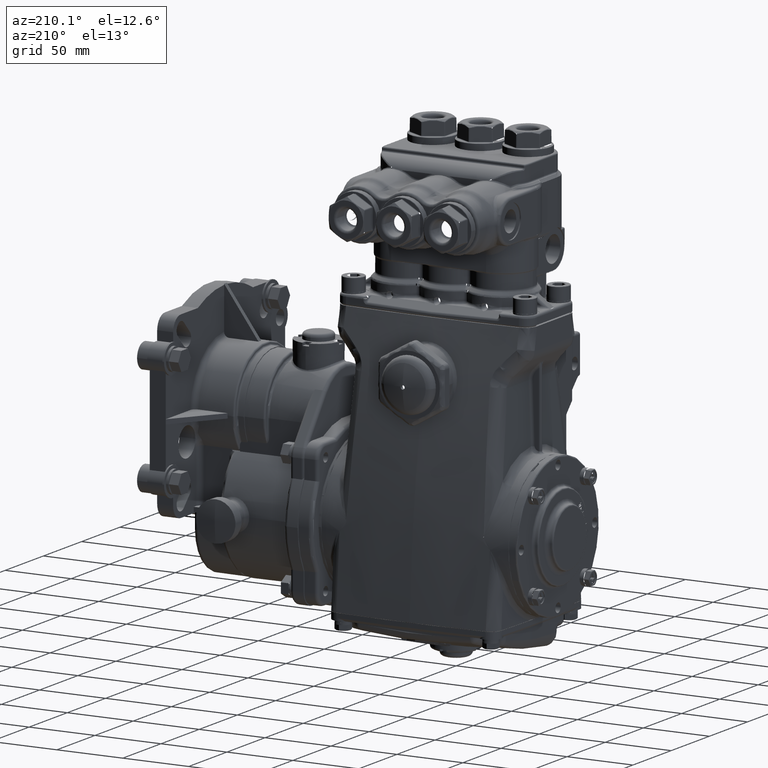
[diagram: clean part render]
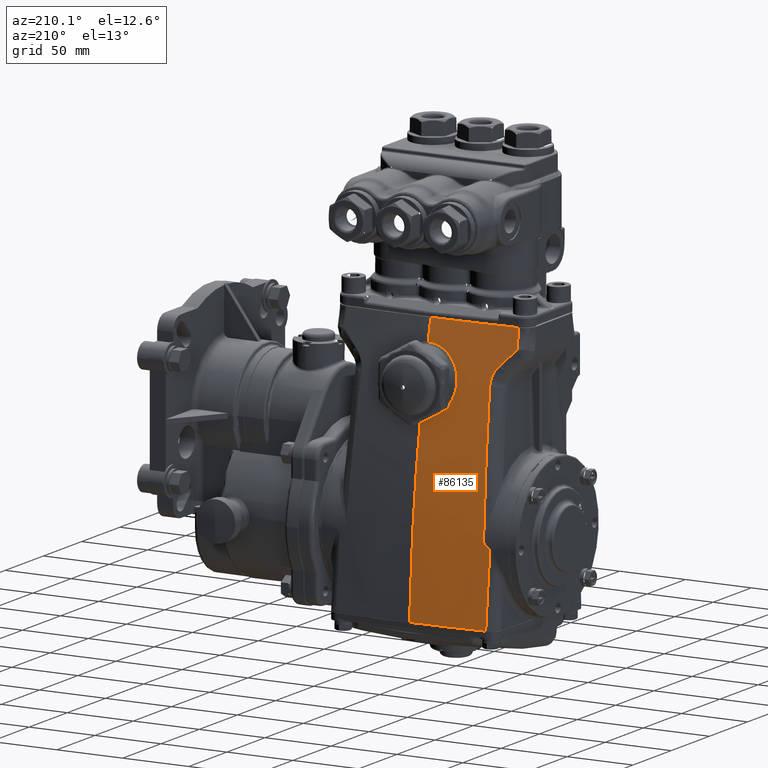
[diagram: same view with one face highlighted and labeled with its STEP entity id]
A machine part, auxiliary view. The second image highlights one B-rep face of the part: STEP entity #86135.
In plain terms, the highlighted face is a freeform B-spline surface patch.
Its self-contained STEP definition (entity closure, byte-faithful):
#938 = CARTESIAN_POINT ( 'NONE',  ( 2.476352911878936691, 2.114609130722263863, 0.4897784465330257131 ) ) ;
#940 = CARTESIAN_POINT ( 'NONE',  ( -2.279618857958573219, 1.416278901517128430, 4.829451229673167312 ) ) ;
#1252 = CARTESIAN_POINT ( 'NONE',  ( -2.239546380805880421, 2.213566551445498298, -0.7448622437288109355 ) ) ;
#1549 = CARTESIAN_POINT ( 'NONE',  ( 2.708159283295305642, 1.723791484228667459, 3.127925920230769652 ) ) ;
#2160 = CARTESIAN_POINT ( 'NONE',  ( 0.8095103919857050689, 1.292140362101252382, 5.708661417322824505 ) ) ;
#2774 = CARTESIAN_POINT ( 'NONE',  ( -0.1450234440065842345, 2.300768595909193692, 0.4897784465330312087 ) ) ;
#3368 = CARTESIAN_POINT ( 'NONE',  ( 2.179242577519465929, 1.242815352902282511, 5.708661417322839604 ) ) ;
#3775 = CARTESIAN_POINT ( 'NONE',  ( -0.5946663609481593893, 1.484859650876335424, 4.888530248302498826 ) ) ;
#3861 = CARTESIAN_POINT ( 'NONE',  ( -2.153604286739069895, 2.142677141121247963, 0.02739613417405062021 ) ) ;
#3900 = B_SPLINE_CURVE_WITH_KNOTS ( 'NONE', 3,
 ( #80675, #34273, #99877, #91176, #52818, #42366, #5233, #44171 ),
 .UNSPECIFIED., .F., .F.,
 ( 4, 2, 2, 4 ),
 ( 0.0003113998746300996462, 0.06810555726670124155, 0.1020026359627368012, 0.1358997146587723748 ),
 .UNSPECIFIED. ) ;
#4233 = CARTESIAN_POINT ( 'NONE',  ( -2.580420361868525525, 1.219814423293576366, 5.708661417322829834 ) ) ;
#4390 = CARTESIAN_POINT ( 'NONE',  ( -0.9644831214159413912, 1.618667759299428743, 4.199342229287561068 ) ) ;
#5003 = CARTESIAN_POINT ( 'NONE',  ( -1.274984242628392523E-15, 1.445461229294053629, 5.090103064882366191 ) ) ;
#5188 = CARTESIAN_POINT ( 'NONE',  ( -2.052668002272747927, 2.123788338986134505, 0.3020877454172159471 ) ) ;
#5233 = CARTESIAN_POINT ( 'NONE',  ( -4.466146051079346438E-16, 1.913088131938618153, 2.714857836103527600 ) ) ;
#5419 = B_SPLINE_CURVE_WITH_KNOTS ( 'NONE', 3,
 ( #5968, #6581, #79580, #72141 ),
 .UNSPECIFIED., .F., .F.,
 ( 4, 4 ),
 ( 0.1860543191475172720, 0.2021863343224881704 ),
 .UNSPECIFIED. ) ;
#5480 = CARTESIAN_POINT ( 'NONE',  ( -1.989399371181384657, 2.338284998638617829, -2.165354330708661568 ) ) ;
#5968 = CARTESIAN_POINT ( 'NONE',  ( -1.274984242628392523E-15, 1.445461229294053629, 5.090103064882366191 ) ) ;
#6164 = CARTESIAN_POINT ( 'NONE',  ( -2.580420361868525525, 1.219814423293576366, 5.708661417322829834 ) ) ;
#6198 = CARTESIAN_POINT ( 'NONE',  ( -0.4035240144287290942, 1.462619888851461880, 5.002588478119779580 ) ) ;
#6581 = CARTESIAN_POINT ( 'NONE',  ( 1.889681467910129429E-08, 1.398385728573260156, 5.296640703349395629 ) ) ;
#6767 = CARTESIAN_POINT ( 'NONE',  ( -2.048227176215684064, 1.481234032319028726, 4.583956750178723283 ) ) ;
#7311 = CARTESIAN_POINT ( 'NONE',  ( -2.913385826771653697, 2.265344068576853775, -2.165354330708661568 ) ) ;
#7938 = CARTESIAN_POINT ( 'NONE',  ( -1.062078202322146669, 2.384053432892066837, -2.165354330708661568 ) ) ;
#8051 = CARTESIAN_POINT ( 'NONE',  ( -0.2533926817482555771, 1.828505556673673205, 3.187054628844160131 ) ) ;
#9468 = EDGE_CURVE ( 'NONE', #115489, #51260, #69783, .T. ) ;
#9963 = VERTEX_POINT ( 'NONE', #113158 ) ;
#10228 = CARTESIAN_POINT ( 'NONE',  ( -0.7853088048963535739, 1.913828282296075267, 3.127925920230765211 ) ) ;
#10839 = CARTESIAN_POINT ( 'NONE',  ( 1.099363582922386673, 2.382977130700372648, -2.165354330708661568 ) ) ;
#11433 = CARTESIAN_POINT ( 'NONE',  ( 0.7760523888099779555, 2.282663781206291986, 0.4897784465330268233 ) ) ;
#12058 = CARTESIAN_POINT ( 'NONE',  ( 2.319896085376018283E-17, 1.931427949591510762, 3.127925920230771872 ) ) ;
#12394 = CARTESIAN_POINT ( 'NONE',  ( -2.582554775073421904, 1.257421124533808054, 5.523052829341247971 ) ) ;
#12629 = ORIENTED_EDGE ( 'NONE', *, *, #35794, .F. ) ;
#12664 = CARTESIAN_POINT ( 'NONE',  ( -0.8019535934125048282, 1.292120820694525829, 5.708661417322820952 ) ) ;
#13139 = CARTESIAN_POINT ( 'NONE',  ( -2.244154975526539531, 2.140548279587432656, -0.04263853052005076028 ) ) ;
#13675 = CARTESIAN_POINT ( 'NONE',  ( -0.7902471345203807562, 1.524914881969420044, 4.681808476390664886 ) ) ;
#14293 = CARTESIAN_POINT ( 'NONE',  ( -0.007991942765918347985, 1.445461232153650188, 5.090103052336265144 ) ) ;
#14362 = CARTESIAN_POINT ( 'NONE',  ( -2.077214970515644410, 2.141491778610241425, 0.1126631891245922779 ) ) ;
#14475 = CARTESIAN_POINT ( 'NONE',  ( -2.044355463987427957, 2.128279285250508579, 0.2680828113186349282 ) ) ;
#14781 = ORIENTED_EDGE ( 'NONE', *, *, #87878, .F. ) ;
#14883 = CARTESIAN_POINT ( 'NONE',  ( -0.9458950846975647808, 1.674355009619317380, 3.918891003596448375 ) ) ;
#15365 = CARTESIAN_POINT ( 'NONE',  ( -2.234415192802543526, 2.147607685230850105, 0.4897784465330339287 ) ) ;
#15990 = CARTESIAN_POINT ( 'NONE',  ( -2.324091733874594556, 1.235065584125860205, 5.708661417322837828 ) ) ;
#16100 = CARTESIAN_POINT ( 'NONE',  ( -0.8708494686695563702, 1.719662461424737776, 3.696078290583389769 ) ) ;
#16374 = ORIENTED_EDGE ( 'NONE', *, *, #91179, .F. ) ;
#16658 = CARTESIAN_POINT ( 'NONE',  ( -2.131860052545362816, 1.455898494205196236, 4.682448122466263740 ) ) ;
#17154 = CARTESIAN_POINT ( 'NONE',  ( -0.1449627675236095370, 1.299212598425194765, 5.708661417322837828 ) ) ;
#17195 = CARTESIAN_POINT ( 'NONE',  ( -2.841641326625984565, 1.202961639721772835, 5.708661417322836940 ) ) ;
#17472 = ORIENTED_EDGE ( 'NONE', *, *, #76048, .T. ) ;
#18968 = CARTESIAN_POINT ( 'NONE',  ( -2.975520256783599425E-07, 1.299212598425199872, 5.708661417322837828 ) ) ;
#19473 = CARTESIAN_POINT ( 'NONE',  ( 2.441314665332591005, 2.306279735125305486, -2.165354330708661568 ) ) ;
#19656 = EDGE_CURVE ( 'NONE', #9963, #98205, #5419, .T. ) ;
#20086 = CARTESIAN_POINT ( 'NONE',  ( -0.1449627675236095370, 1.299212598425194765, 5.708661417322837828 ) ) ;
#20288 = B_SPLINE_CURVE_WITH_KNOTS ( 'NONE', 3,
 ( #4233, #119243, #34487, #100710, #82697, #120463, #121072, #83936, #36330, #63554, #103154, #17154, #103760, #18968, #74047, #56694 ),
 .UNSPECIFIED., .F., .F.,
 ( 4, 1, 1, 1, 1, 1, 1, 1, 1, 1, 3, 4 ),
 ( 0.06520171273649551236, 0.06753282007624346328, 0.1174024920637856823, 0.1540237005538281356, 0.1694129428060909270, 0.2162494616614028531, 0.2572137211546264846, 0.3069485252441864209, 0.3694051774372769659, 0.4254245802233757034, 0.4999999999999931721, 0.5000000764014950194 ),
 .UNSPECIFIED. ) ;
#20693 = CARTESIAN_POINT ( 'NONE',  ( 7.936972221735040067E-07, 2.401574803149599369, -2.165354330708661568 ) ) ;
#21314 = CARTESIAN_POINT ( 'NONE',  ( 1.438329920831150188, 2.368889522099582479, -2.165354330708661568 ) ) ;
#21931 = CARTESIAN_POINT ( 'NONE',  ( 1.742463560137298861, 1.843263351871661682, 3.127925920230766099 ) ) ;
#22436 = CARTESIAN_POINT ( 'NONE',  ( -2.581547405182520460, 1.334037875565112996, 5.131388924344277847 ) ) ;
#22931 = CARTESIAN_POINT ( 'NONE',  ( -0.8408534539225610560, 1.540288871572165208, 4.602309156754100350 ) ) ;
#23014 = CARTESIAN_POINT ( 'NONE',  ( -2.086663981160561399, 2.141946370163338997, 0.09931180522621477214 ) ) ;
#23550 = CARTESIAN_POINT ( 'NONE',  ( -0.01614265106011288434, 1.445481042056539822, 5.090002092305161874 ) ) ;
#24149 = CARTESIAN_POINT ( 'NONE',  ( -0.9348349137624539784, 1.683629070884896217, 3.872875714643418732 ) ) ;
#24257 = CARTESIAN_POINT ( 'NONE',  ( -2.574974328991057604, 1.336104400314134022, 5.123366273300666407 ) ) ;
#25242 = CARTESIAN_POINT ( 'NONE',  ( -2.279253307875169998, 1.782954428840550332, 3.127925920230779422 ) ) ;
#25297 = CARTESIAN_POINT ( 'NONE',  ( -3.553331779381568324E-16, 2.401107312964255058, -2.153091527327260835 ) ) ;
#25369 = CARTESIAN_POINT ( 'NONE',  ( -0.9670770789927327638, 1.627969835512180108, 4.152052922981180672 ) ) ;
#25864 = CARTESIAN_POINT ( 'NONE',  ( -1.648668314213691533, 2.215500870424783830, 0.4897784465330284331 ) ) ;
#26975 = CARTESIAN_POINT ( 'NONE',  ( -2.053194142686559864, 2.123507996596452063, 0.3041950259637326570 ) ) ;
#27662 = VERTEX_POINT ( 'NONE', #56979 ) ;
#28764 = CARTESIAN_POINT ( 'NONE',  ( -2.913385809642305091, 1.691985680221154587, 3.127925920230778090 ) ) ;
#28790 = CARTESIAN_POINT ( 'NONE',  ( -2.040573113143061779, 2.130372523749103575, 0.2520858116330775278 ) ) ;
#28867 = ORIENTED_EDGE ( 'NONE', *, *, #121881, .F. ) ;
#29066 = CARTESIAN_POINT ( 'NONE',  ( -2.010220420681155140, 1.978156669164420789, 1.583179683012722050 ) ) ;
#29370 = CARTESIAN_POINT ( 'NONE',  ( 0.4944103712627416769, 1.296520347643933091, 5.708661417322852039 ) ) ;
#29821 = B_SPLINE_CURVE_WITH_KNOTS ( 'NONE', 3,
 ( #50343, #117767, #107930, #5188, #33613, #32997, #71365, #106713, #99226, #14475 ),
 .UNSPECIFIED., .F., .F.,
 ( 4, 3, 3, 4 ),
 ( -5.562569102119109104E-05, 0.000000000000000000, 0.0003135512665637998626, 0.0008964518825718759739 ),
 .UNSPECIFIED. ) ;
#29992 = CARTESIAN_POINT ( 'NONE',  ( 1.523571933390364785, 1.864023738764600591, 3.127925920230789192 ) ) ;
#30594 = CARTESIAN_POINT ( 'NONE',  ( -0.4056649939589583309, 1.297898323476693649, 5.708661417322814735 ) ) ;
#31199 = CARTESIAN_POINT ( 'NONE',  ( 1.648708095812247088, 2.358238290425401562, -2.165354330708661568 ) ) ;
#31422 = ORIENTED_EDGE ( 'NONE', *, *, #106276, .F. ) ;
#31687 = CARTESIAN_POINT ( 'NONE',  ( -2.217111855764112516, 2.141468998871418616, -0.02405646177959929258 ) ) ;
#31814 = CARTESIAN_POINT ( 'NONE',  ( 2.862114397419967649, 1.201536995417321174, 5.708661417322835163 ) ) ;
#32208 = CARTESIAN_POINT ( 'NONE',  ( -0.9599596636209277722, 1.609408501972310779, 4.246538372213342960 ) ) ;
#32727 = VERTEX_POINT ( 'NONE', #6164 ) ;
#32815 = CARTESIAN_POINT ( 'NONE',  ( -0.04032141249026679336, 1.445619475605324000, 5.089296836793727685 ) ) ;
#32889 = CARTESIAN_POINT ( 'NONE',  ( -2.043608718765491883, 2.136991848240977987, 0.1870679647836690218 ) ) ;
#32997 = CARTESIAN_POINT ( 'NONE',  ( -2.050696319507216092, 2.124840656513260484, 0.2941673272930124816 ) ) ;
#33613 = CARTESIAN_POINT ( 'NONE',  ( -2.051680137896821687, 2.124314930510387445, 0.2981281011033452000 ) ) ;
#33922 = CARTESIAN_POINT ( 'NONE',  ( -2.450684691601683340, 2.118214908375344319, 0.4897784465330273784 ) ) ;
#34039 = CARTESIAN_POINT ( 'NONE',  ( -0.1605620357445409763, 1.447988655397608015, 5.077233423560210568 ) ) ;
#34173 = EDGE_CURVE ( 'NONE', #109842, #83220, #29821, .T. ) ;
#34273 = CARTESIAN_POINT ( 'NONE',  ( 3.593408354664775481E-16, 2.367043445073854002, -1.263200589613154179 ) ) ;
#34487 = CARTESIAN_POINT ( 'NONE',  ( -2.484440817764909770, 1.225721470078472430, 5.708661417322824505 ) ) ;
#34508 = ORIENTED_EDGE ( 'NONE', *, *, #89435, .F. ) ;
#34646 = CARTESIAN_POINT ( 'NONE',  ( -0.3449787976630956376, 1.821950353961405922, 3.216540131001417890 ) ) ;
#35137 = CARTESIAN_POINT ( 'NONE',  ( -2.037265628463433398, 2.172062645620683519, 0.4897784465330372039 ) ) ;
#35254 = CARTESIAN_POINT ( 'NONE',  ( -0.4886140263089463476, 1.807145071133906100, 3.283690386975755882 ) ) ;
#35789 = VERTEX_POINT ( 'NONE', #58126 ) ;
#35794 = EDGE_CURVE ( 'NONE', #46389, #35789, #89853, .T. ) ;
#35868 = CARTESIAN_POINT ( 'NONE',  ( 4.913136071072523174E-16, 1.836057301759951743, 3.153322082173252383 ) ) ;
#36330 = CARTESIAN_POINT ( 'NONE',  ( -1.150346110494637530, 1.283976514928851342, 5.708661417322833387 ) ) ;
#36372 = CARTESIAN_POINT ( 'NONE',  ( -1.120923444174019235, 1.894876309026148453, 3.127925920230774093 ) ) ;
#36480 = CARTESIAN_POINT ( 'NONE',  ( -0.6422591814072778904, 1.782550782372619880, 3.397208525460234441 ) ) ;
#36733 = EDGE_CURVE ( 'NONE', #27662, #112135, #3900, .T. ) ;
#37146 = CARTESIAN_POINT ( 'NONE',  ( -2.227242516835840735, 2.321209563805544995, -2.152759186897168053 ) ) ;
#37319 = EDGE_CURVE ( 'NONE', #83220, #46389, #67194, .T. ) ;
#38654 = CARTESIAN_POINT ( 'NONE',  ( 0.2402441229366546194, 2.299342540392106837, 0.4897784465330339287 ) ) ;
#39273 = CARTESIAN_POINT ( 'NONE',  ( 2.729947521028391666, 1.210496205736397046, 5.708661417322837828 ) ) ;
#39883 = CARTESIAN_POINT ( 'NONE',  ( 2.035968259211032638, 2.335433637454252143, -2.165354330708661568 ) ) ;
#40491 = CARTESIAN_POINT ( 'NONE',  ( -0.1449928827331220249, 1.931427949591510762, 3.127925920230771872 ) ) ;
#40967 = CARTESIAN_POINT ( 'NONE',  ( -2.038984479122261106, 2.132266257378623298, 0.2358320036178836454 ) ) ;
#41105 = CARTESIAN_POINT ( 'NONE',  ( 0.2418360551790639801, 1.930064199602339103, 3.127925920230777201 ) ) ;
#41517 = CARTESIAN_POINT ( 'NONE',  ( -0.4888797921504500765, 1.471286706367559427, 4.958214325787497323 ) ) ;
#42117 = CARTESIAN_POINT ( 'NONE',  ( -0.8248358664637558402, 1.535056502061034278, 4.629367722570788324 ) ) ;
#42366 = CARTESIAN_POINT ( 'NONE',  ( -7.629761195857950561E-17, 1.982659120498347916, 2.275230264263858437 ) ) ;
#42735 = CARTESIAN_POINT ( 'NONE',  ( -0.08054166425364028825, 1.446093476583459880, 5.086882738810285076 ) ) ;
#43221 = CARTESIAN_POINT ( 'NONE',  ( -2.832087334218518215, 1.704813401921131399, 3.127925920230778090 ) ) ;
#43333 = CARTESIAN_POINT ( 'NONE',  ( -0.7319415609452395444, 1.510511002020254567, 4.756252534259797216 ) ) ;
#44171 = CARTESIAN_POINT ( 'NONE',  ( 4.913136071072523174E-16, 1.836057301759951743, 3.153322082173252383 ) ) ;
#44424 = CARTESIAN_POINT ( 'NONE',  ( -2.822533585408712575, 2.063108027997046179, 0.4897784465330322634 ) ) ;
#44483 = CARTESIAN_POINT ( 'NONE',  ( -1.954921401464340569, 1.523061787492009378, 4.402702356222214064 ) ) ;
#44532 = CARTESIAN_POINT ( 'NONE',  ( -0.5678631274823000563, 1.795369591084005068, 3.337844157325744021 ) ) ;
#45032 = CARTESIAN_POINT ( 'NONE',  ( -1.345329668388619115, 2.372960332906649317, -2.165354330708661568 ) ) ;
#45103 = CARTESIAN_POINT ( 'NONE',  ( -1.946748905238077532, 1.528379903095722359, 4.378080018571826493 ) ) ;
#45522 = CARTESIAN_POINT ( 'NONE',  ( 4.913136071072523174E-16, 1.836057301759951743, 3.153322082173252383 ) ) ;
#45659 = CARTESIAN_POINT ( 'NONE',  ( -1.091501189288772045, 2.263308735351807321, 0.4897784465330322634 ) ) ;
#45772 = CARTESIAN_POINT ( 'NONE',  ( -0.2689366647110955633, 1.827531859230573152, 3.191424109076884452 ) ) ;
#46389 = VERTEX_POINT ( 'NONE', #111151 ) ;
#46580 = ORIENTED_EDGE ( 'NONE', *, *, #9468, .F. ) ;
#47922 = CARTESIAN_POINT ( 'NONE',  ( 1.866877324122242721, 2.345940473350991429, -2.165354330708661568 ) ) ;
#47947 = CARTESIAN_POINT ( 'NONE',  ( -2.141518609228189263, 2.142761626880099524, 0.03843709217641186338 ) ) ;
#48533 = CARTESIAN_POINT ( 'NONE',  ( 2.546430131488103932, 1.222062046991425621, 5.708661417322830722 ) ) ;
#48560 = CARTESIAN_POINT ( 'NONE',  ( -2.190893994370608944, 2.142160377084880274, -0.004468358595172875793 ) ) ;
#48740 = CARTESIAN_POINT ( 'NONE',  ( -1.927611122228681362, 1.544016712790777790, 4.303500443620481342 ) ) ;
#49142 = CARTESIAN_POINT ( 'NONE',  ( 1.161614335099249162, 1.892574789840504090, 3.127925920230731460 ) ) ;
#49756 = CARTESIAN_POINT ( 'NONE',  ( 0.1020157036538342776, 2.401574803149599813, -2.165354330708661568 ) ) ;
#50061 = CARTESIAN_POINT ( 'NONE',  ( -2.032358843832673401, 2.056376370780970575, 0.9443930657390869898 ) ) ;
#50343 = CARTESIAN_POINT ( 'NONE',  ( -2.053194142686559864, 2.123507996596452063, 0.3041950259637326570 ) ) ;
#50362 = CARTESIAN_POINT ( 'NONE',  ( 0.7927816049644650365, 1.913850617605289184, 3.127925920230762991 ) ) ;
#50965 = CARTESIAN_POINT ( 'NONE',  ( 2.913385826771654141, 2.265344068576858216, -2.165354330708661568 ) ) ;
#51260 = VERTEX_POINT ( 'NONE', #70204 ) ;
#51369 = CARTESIAN_POINT ( 'NONE',  ( -0.5160278655444363594, 1.474502422586200012, 4.941722194200434792 ) ) ;
#51982 = CARTESIAN_POINT ( 'NONE',  ( -0.9554301720631649397, 1.603327808052290360, 4.277628539086538950 ) ) ;
#52177 = CARTESIAN_POINT ( 'NONE',  ( 2.848460234453425777, 2.059014184365152378, 0.4897784465330273784 ) ) ;
#52467 = CARTESIAN_POINT ( 'NONE',  ( -1.424768798695146943, 1.872199753906897080, 3.127925920230782530 ) ) ;
#52581 = CARTESIAN_POINT ( 'NONE',  ( -0.9195789750301698318, 1.573690374301592643, 4.429810660793449095 ) ) ;
#52818 = CARTESIAN_POINT ( 'NONE',  ( -8.016133500422119341E-17, 2.106884914907209971, 1.393649014934724262 ) ) ;
#53679 = CARTESIAN_POINT ( 'NONE',  ( -1.943646624093668951, 1.254362676313996783, 5.708661417322836940 ) ) ;
#53740 = CARTESIAN_POINT ( 'NONE',  ( -2.063488888649752440, 1.476050141854796216, 4.604872648964009052 ) ) ;
#54906 = CARTESIAN_POINT ( 'NONE',  ( -2.189576524486965603, 2.325080261920541513, -2.165354330708661568 ) ) ;
#55570 = CARTESIAN_POINT ( 'NONE',  ( -2.044355463987427957, 2.128279285250508579, 0.2680828113186349282 ) ) ;
#56201 = CARTESIAN_POINT ( 'NONE',  ( -1.982876757387886268, 1.507254981816013251, 4.474301887717919257 ) ) ;
#56302 = CARTESIAN_POINT ( 'NONE',  ( -2.244154975526539531, 2.140548279587432656, -0.04263853052005076028 ) ) ;
#56694 = CARTESIAN_POINT ( 'NONE',  ( 3.450959980213676461E-17, 1.299212598425197429, 5.708661417322835163 ) ) ;
#56979 = CARTESIAN_POINT ( 'NONE',  ( -3.553331779381568324E-16, 2.401107312964255058, -2.153091527327260835 ) ) ;
#57206 = CARTESIAN_POINT ( 'NONE',  ( -0.4014957656440674150, 1.927885586440226895, 3.127925920230758550 ) ) ;
#57415 = CARTESIAN_POINT ( 'NONE',  ( -1.911712936028526322, 1.569139206086894500, 4.176878153945165373 ) ) ;
#57803 = CARTESIAN_POINT ( 'NONE',  ( 0.1019499836553653532, 1.299212598425203424, 5.708661417322837828 ) ) ;
#57824 = CARTESIAN_POINT ( 'NONE',  ( -2.044355463987427957, 2.128279285250508579, 0.2680828113186349282 ) ) ;
#58126 = CARTESIAN_POINT ( 'NONE',  ( -2.227242516835840735, 2.321209563805544995, -2.152759186897168053 ) ) ;
#58418 = CARTESIAN_POINT ( 'NONE',  ( -0.3931574066697886560, 2.399831511276485863, -2.165354330708661568 ) ) ;
#58745 = CARTESIAN_POINT ( 'NONE',  ( -2.584535606851970257, 1.294080410689277816, 5.337251396087705935 ) ) ;
#59015 = CARTESIAN_POINT ( 'NONE',  ( 0.7593239362273205284, 2.393134938270125467, -2.165354330708661568 ) ) ;
#59358 = CARTESIAN_POINT ( 'NONE',  ( -2.580420361868525525, 1.219814423293576366, 5.708661417322829834 ) ) ;
#59633 = CARTESIAN_POINT ( 'NONE',  ( 2.131484495458442208, 1.801026039677056101, 3.127925920230771872 ) ) ;
#60639 = CARTESIAN_POINT ( 'NONE',  ( -0.9672713820068502555, 1.646538536074291237, 4.058006522140315653 ) ) ;
#61197 = CARTESIAN_POINT ( 'NONE',  ( -0.7432005799770041721, 2.394457355549478805, -2.153057796680047709 ) ) ;
#61258 = CARTESIAN_POINT ( 'NONE',  ( -0.4326564059834072662, 1.465345589794402548, 4.988646893029097029 ) ) ;
#61338 = CARTESIAN_POINT ( 'NONE',  ( -2.060662642086692475, 2.140149228468939402, 0.1411380803277902662 ) ) ;
#61882 = B_SPLINE_CURVE_WITH_KNOTS ( 'NONE', 3,
 ( #98981, #80980, #63020, #61197, #109472, #25297 ),
 .UNSPECIFIED., .F., .F.,
 ( 4, 2, 4 ),
 ( 2.221529986854170653E-16, 0.02830497638067613897, 0.05660995276135205589 ),
 .UNSPECIFIED. ) ;
#62358 = CARTESIAN_POINT ( 'NONE',  ( -2.487087237515690497, 1.755350102494653619, 3.127925920230767431 ) ) ;
#63020 = CARTESIAN_POINT ( 'NONE',  ( -1.485659127593189410, 2.367827536078678907, -2.152937399985699773 ) ) ;
#63085 = CARTESIAN_POINT ( 'NONE',  ( -0.8837879089344025108, 1.556684492105498974, 4.517574585329222181 ) ) ;
#63554 = CARTESIAN_POINT ( 'NONE',  ( -0.8019535934125048282, 1.292120820694525829, 5.708661417322820952 ) ) ;
#63712 = CARTESIAN_POINT ( 'NONE',  ( -0.2066455304282949212, 1.831067194595412229, 3.175578635901488589 ) ) ;
#65897 = VERTEX_POINT ( 'NONE', #94367 ) ;
#66493 = CARTESIAN_POINT ( 'NONE',  ( 2.240980235268052567, 2.321187910974375601, -2.165354330708661568 ) ) ;
#66496 = CARTESIAN_POINT ( 'NONE',  ( -2.427290454833202382, 1.376123305585299272, 4.976396351799645679 ) ) ;
#66517 = CARTESIAN_POINT ( 'NONE',  ( -2.053717711146651137, 2.139269078108408273, 0.1560372837815818814 ) ) ;
#67107 = CARTESIAN_POINT ( 'NONE',  ( 2.369125755900576280, 1.232386614232151567, 5.708661417322828946 ) ) ;
#67194 = B_SPLINE_CURVE_WITH_KNOTS ( 'NONE', 3,
 ( #57824, #28790, #40967, #78673, #32889, #66517, #61338, #14362, #23014, #97894, #89204, #47947, #3861, #48560, #31687, #13139 ),
 .UNSPECIFIED., .F., .F.,
 ( 4, 2, 2, 2, 2, 2, 2, 4 ),
 ( 0.000000000000000000, 0.001262479239838070356, 0.002524958479676140712, 0.003787437719514211067, 0.005049916959352281423, 0.006312396199190351345, 0.007574875439028422135, 0.01009983391870456285 ),
 .UNSPECIFIED. ) ;
#67419 = CARTESIAN_POINT ( 'NONE',  ( -1.913792689305000794, 1.578652126433170100, 4.124995731966824231 ) ) ;
#67445 = CARTESIAN_POINT ( 'NONE',  ( -2.586362804630043755, 1.329823753665074770, 5.151270064738946886 ) ) ;
#67721 = CARTESIAN_POINT ( 'NONE',  ( 2.283695148368128258, 2.140796000541696831, 0.4897784465330257131 ) ) ;
#68324 = CARTESIAN_POINT ( 'NONE',  ( -0.1450532115828242763, 2.401574803149599369, -2.165354330708661568 ) ) ;
#68633 = CARTESIAN_POINT ( 'NONE',  ( -1.963626619177751165, 1.797341108968452561, 2.856902942451461147 ) ) ;
#68859 = CARTESIAN_POINT ( 'NONE',  ( -2.585440017282558234, 1.331886858991679468, 5.140951107667772746 ) ) ;
#68949 = CARTESIAN_POINT ( 'NONE',  ( 1.163670133464663677E-17, 2.300768595909193692, 0.4897784465330312087 ) ) ;
#69783 = B_SPLINE_CURVE_WITH_KNOTS ( 'NONE', 3,
 ( #107249, #118303, #68859, #22436, #109058, #24257 ),
 .UNSPECIFIED., .F., .F.,
 ( 4, 2, 4 ),
 ( 2.860979249076398407E-17, 0.0003987412940839050513, 0.0007974825881677814797 ),
 .UNSPECIFIED. ) ;
#69957 = CARTESIAN_POINT ( 'NONE',  ( -0.9169727454114507958, 1.695898520020460598, 3.812303417004026418 ) ) ;
#70204 = CARTESIAN_POINT ( 'NONE',  ( -2.574974328991057604, 1.336104400314134022, 5.123366273300666407 ) ) ;
#70564 = CARTESIAN_POINT ( 'NONE',  ( -0.03226603085782383390, 1.445560164890504762, 5.089598979694466507 ) ) ;
#70964 = VERTEX_POINT ( 'NONE', #89998 ) ;
#71365 = CARTESIAN_POINT ( 'NONE',  ( -2.049718606573461166, 2.125365367588376575, 0.2902049147125475015 ) ) ;
#71378 = CARTESIAN_POINT ( 'NONE',  ( 2.841633460699813707, 2.272069094341538253, -2.165354330708661568 ) ) ;
#71674 = CARTESIAN_POINT ( 'NONE',  ( -2.684844189044222063, 2.084204787240034662, 0.4897784465330306536 ) ) ;
#71698 = CARTESIAN_POINT ( 'NONE',  ( -2.586362804630043755, 1.329823753665074770, 5.151270064738946886 ) ) ;
#72141 = CARTESIAN_POINT ( 'NONE',  ( 3.450959980213676461E-17, 1.299212598425197429, 5.708661417322835163 ) ) ;
#72259 = CARTESIAN_POINT ( 'NONE',  ( -2.706392384829025666, 1.723957603235178659, 3.127925920230774093 ) ) ;
#72375 = CARTESIAN_POINT ( 'NONE',  ( -0.06459929520378426826, 1.836057302116698375, 3.153322082174859542 ) ) ;
#72377 = CARTESIAN_POINT ( 'NONE',  ( -0.6433779996093791365, 1.492703628457151765, 4.848150405952392106 ) ) ;
#72540 = EDGE_LOOP ( 'NONE', ( #12629, #96410, #81312, #28867, #118396, #34508, #46580, #14781, #17472, #88884, #31422, #97843, #16374 ) ) ;
#72869 = CARTESIAN_POINT ( 'NONE',  ( -2.663295530942336509, 2.288034568519320633, -2.165354330708661568 ) ) ;
#72986 = CARTESIAN_POINT ( 'NONE',  ( -0.6057620011881456046, 1.789096022879973935, 3.366838808613131118 ) ) ;
#73478 = CARTESIAN_POINT ( 'NONE',  ( -1.846782245487677443, 2.194251839819490346, 0.4897784465330333736 ) ) ;
#73956 = CARTESIAN_POINT ( 'NONE',  ( 3.450959980213676461E-17, 1.299212598425197429, 5.708661417322835163 ) ) ;
#74047 = CARTESIAN_POINT ( 'NONE',  ( -1.490400975860531206E-07, 1.299212598425199205, 5.708661417322837828 ) ) ;
#74196 = CARTESIAN_POINT ( 'NONE',  ( -0.7307716510373689633, 1.763420215501402932, 3.486847099895348912 ) ) ;
#76048 = EDGE_CURVE ( 'NONE', #32727, #98205, #20288, .T. ) ;
#76366 = CARTESIAN_POINT ( 'NONE',  ( 2.511391663655022644, 1.752002329188374841, 3.127925920230763879 ) ) ;
#76977 = CARTESIAN_POINT ( 'NONE',  ( 0.4873200862093256536, 1.924545779200155238, 3.127925920230781642 ) ) ;
#77184 = CARTESIAN_POINT ( 'NONE',  ( -1.914997405245973727, 1.559272713065359195, 4.227973954623275965 ) ) ;
#77581 = CARTESIAN_POINT ( 'NONE',  ( 1.566192897389171446, 1.270407001257443991, 5.708661417322867138 ) ) ;
#78188 = CARTESIAN_POINT ( 'NONE',  ( 0.2386529819870307489, 2.400899943846330320, -2.165354330708661568 ) ) ;
#78673 = CARTESIAN_POINT ( 'NONE',  ( -2.040459019290783882, 2.135564256478422518, 0.2034737644382935695 ) ) ;
#78805 = CARTESIAN_POINT ( 'NONE',  ( 1.789341252083276768, 1.261249471572284842, 5.708661417322832499 ) ) ;
#78986 = EDGE_CURVE ( 'NONE', #70964, #65897, #84700, .T. ) ;
#79210 = CARTESIAN_POINT ( 'NONE',  ( -0.3151986056433663808, 1.455377961310619028, 5.039591650425436775 ) ) ;
#79580 = CARTESIAN_POINT ( 'NONE',  ( -1.384850827037492099E-08, 1.349635227852899577, 5.502833657239617260 ) ) ;
#79801 = B_SPLINE_SURFACE_WITH_KNOTS ( 'NONE', 3, 3, ( 
 ( #7311, #119883, #28764, #99521 ),
 ( #118685, #44424, #43221, #17195 ),
 ( #72869, #71674, #72259, #82131 ),
 ( #100754, #33922, #62358, #110027 ),
 ( #54906, #15365, #25242, #15990 ),
 ( #5480, #35137, #83358, #82741 ),
 ( #120508, #73478, #92660, #53679 ),
 ( #80930, #25864, #91428, #111851 ),
 ( #45032, #111250, #52467, #110637 ),
 ( #7938, #45659, #36372, #90218 ),
 ( #97413, #105492, #10228, #12664 ),
 ( #58418, #114740, #57206, #30594 ),
 ( #68324, #2774, #40491, #20086 ),
 ( #20693, #68949, #12058, #88105 ),
 ( #49756, #94961, #96187, #57803 ),
 ( #78188, #38654, #41105, #106100 ),
 ( #87486, #115938, #76977, #29370 ),
 ( #59015, #11433, #50362, #2160 ),
 ( #10839, #106726, #49142, #86881 ),
 ( #21314, #86250, #29992, #77581 ),
 ( #31199, #115342, #21931, #78805 ),
 ( #47922, #96795, #95579, #116573 ),
 ( #39883, #85656, #59633, #3368 ),
 ( #66493, #67721, #104265, #67107 ),
 ( #19473, #938, #76366, #48533 ),
 ( #114128, #104885, #1549, #39273 ),
 ( #71378, #52177, #81845, #31814 ),
 ( #50965, #99240, #98023, #81237 ) ),
 .UNSPECIFIED., .F., .F., .F.,
 ( 4, 1, 1, 1, 1, 1, 1, 1, 1, 1, 1, 3, 1, 1, 1, 1, 1, 1, 1, 1, 1, 1, 1, 4 ),
 ( 4, 4 ),
 ( 0.6820721574386665598, 0.6959246563835279620, 0.7035427212275893183, 0.7193976784518302248, 0.7310405802590583813, 0.7359332488469740863, 0.7508238822397268475, 0.7638475608825302521, 0.7796596398469348710, 0.7995163485322880348, 0.8173264764016470174, 0.8410360787193331689, 0.8577107850873244566, 0.8637457220820379256, 0.8805901526646464639, 0.9065920388027239873, 0.9224714650153007511, 0.9387315542144891722, 0.9421836685404010314, 0.9588536976265762402, 0.9664841599499356395, 0.9748837514135768600, 0.9901004416486960391, 1.000000000000000000 ),
 ( 0.000000000000000000, 1.000000000000000000 ),
 .UNSPECIFIED. ) ;
#79814 = CARTESIAN_POINT ( 'NONE',  ( -0.1286849885896270140, 1.447041223724454762, 5.082056845242140852 ) ) ;
#80675 = CARTESIAN_POINT ( 'NONE',  ( -3.553331779381568324E-16, 2.401107312964255058, -2.153091527327260835 ) ) ;
#80930 = CARTESIAN_POINT ( 'NONE',  ( -1.602354164347862486, 2.360792373919399001, -2.165354330708661568 ) ) ;
#80980 = CARTESIAN_POINT ( 'NONE',  ( -1.856596089375251557, 2.347836400576192695, -2.152851640792331267 ) ) ;
#81237 = CARTESIAN_POINT ( 'NONE',  ( 2.913385826771653697, 1.197969208711458622, 5.708661417322836940 ) ) ;
#81312 = ORIENTED_EDGE ( 'NONE', *, *, #34173, .F. ) ;
#81647 = CARTESIAN_POINT ( 'NONE',  ( -0.9611287857313430827, 1.658899699653147763, 3.995873098052594941 ) ) ;
#81845 = CARTESIAN_POINT ( 'NONE',  ( 2.855287436206074059, 1.701152819370444380, 3.127925920230767431 ) ) ;
#82131 = CARTESIAN_POINT ( 'NONE',  ( -2.727940840439588843, 1.210589729325569186, 5.708661417322829834 ) ) ;
#82697 = CARTESIAN_POINT ( 'NONE',  ( -2.132997294791504572, 1.245100427256950137, 5.708661417322847598 ) ) ;
#82741 = CARTESIAN_POINT ( 'NONE',  ( -2.132997294791504572, 1.245100427256950137, 5.708661417322847598 ) ) ;
#83220 = VERTEX_POINT ( 'NONE', #55570 ) ;
#83358 = CARTESIAN_POINT ( 'NONE',  ( -2.085131295870260804, 1.806265684984544873, 3.127925920230786083 ) ) ;
#83422 = CARTESIAN_POINT ( 'NONE',  ( -2.006197590821474641, 1.496792152695942901, 4.519617041527910217 ) ) ;
#83472 = CARTESIAN_POINT ( 'NONE',  ( -0.3149968055351911600, 1.824372806192152252, 3.205623488492978623 ) ) ;
#83936 = CARTESIAN_POINT ( 'NONE',  ( -1.464488406949919552, 1.274012937168632842, 5.708661417322844933 ) ) ;
#84503 = B_SPLINE_CURVE_WITH_KNOTS ( 'NONE', 3,
 ( #102444, #66496, #940, #93134 ),
 .UNSPECIFIED., .F., .F.,
 ( 4, 4 ),
 ( 0.000000000000000000, 0.01616665010958682341 ),
 .UNSPECIFIED. ) ;
#84700 = B_SPLINE_CURVE_WITH_KNOTS ( 'NONE', 3,
 ( #16658, #91492, #100816, #53740, #6767, #83422, #56201, #44483, #45103, #119956, #48740, #77184, #57415, #94568 ),
 .UNSPECIFIED., .F., .F.,
 ( 4, 2, 2, 2, 2, 2, 4 ),
 ( 0.000000000000000000, 0.002006917460411370476, 0.004013834920822740952, 0.008027669841645476700, 0.01003458730205684761, 0.01204150476246821679, 0.01605533968329095340 ),
 .UNSPECIFIED. ) ;
#85656 = CARTESIAN_POINT ( 'NONE',  ( 2.083726086542775580, 2.166614530041778952, 0.4897784465330300985 ) ) ;
#86135 = ADVANCED_FACE ( 'NONE', ( #90827 ), #79801, .F. ) ;
#86250 = CARTESIAN_POINT ( 'NONE',  ( 1.480950586178896522, 2.231805334558643494, 0.4897784465330393688 ) ) ;
#86881 = CARTESIAN_POINT ( 'NONE',  ( 1.192739666030848023, 1.282981708238517982, 5.708661417322778320 ) ) ;
#87486 = CARTESIAN_POINT ( 'NONE',  ( 0.4731394191495172374, 2.398237061164405937, -2.165354330708661568 ) ) ;
#87801 = CARTESIAN_POINT ( 'NONE',  ( -2.053194142686559864, 2.123507996596452063, 0.3041950259637326570 ) ) ;
#87878 = EDGE_CURVE ( 'NONE', #32727, #115489, #108464, .T. ) ;
#88105 = CARTESIAN_POINT ( 'NONE',  ( -4.460639496743511363E-07, 1.299212598425199872, 5.708661417322837828 ) ) ;
#88507 = CARTESIAN_POINT ( 'NONE',  ( -0.8416776436527459992, 1.731100539559012663, 3.640799853198356306 ) ) ;
#88884 = ORIENTED_EDGE ( 'NONE', *, *, #19656, .F. ) ;
#89132 = CARTESIAN_POINT ( 'NONE',  ( -0.2544585553639733821, 1.451715161675748211, 5.058253401313941744 ) ) ;
#89204 = CARTESIAN_POINT ( 'NONE',  ( -2.118289369877800699, 2.142698611774983775, 0.06166686124301572203 ) ) ;
#89435 = EDGE_CURVE ( 'NONE', #51260, #70964, #84503, .T. ) ;
#89736 = CARTESIAN_POINT ( 'NONE',  ( -0.9374267225573134077, 1.585341853739807183, 4.369806067430778818 ) ) ;
#89853 = B_SPLINE_CURVE_WITH_KNOTS ( 'NONE', 3,
 ( #56302, #1252, #121885, #37146 ),
 .UNSPECIFIED., .F., .F.,
 ( 4, 4 ),
 ( 0.001088878662660275332, 0.05488596565795428317 ),
 .UNSPECIFIED. ) ;
#89998 = CARTESIAN_POINT ( 'NONE',  ( -2.131860052545362816, 1.455898494205196236, 4.682448122466263740 ) ) ;
#90218 = CARTESIAN_POINT ( 'NONE',  ( -1.150346110494637530, 1.283976514928851342, 5.708661417322833387 ) ) ;
#90827 = FACE_OUTER_BOUND ( 'NONE', #72540, .T. ) ;
#91176 = CARTESIAN_POINT ( 'NONE',  ( -9.400979228033020406E-16, 2.161540637553380773, 0.9516246190699118035 ) ) ;
#91179 = EDGE_CURVE ( 'NONE', #35789, #27662, #61882, .T. ) ;
#91428 = CARTESIAN_POINT ( 'NONE',  ( -1.694981807724714296, 1.848142482010741716, 3.127925920230768320 ) ) ;
#91492 = CARTESIAN_POINT ( 'NONE',  ( -2.113476934372326532, 1.460827687103822159, 4.664159022983963787 ) ) ;
#91537 = CARTESIAN_POINT ( 'NONE',  ( -0.5548157912006945747, 1.797392117569904801, 3.328526122958149536 ) ) ;
#92660 = CARTESIAN_POINT ( 'NONE',  ( -1.895214259565363601, 1.827571154474304294, 3.127925920230778090 ) ) ;
#93134 = CARTESIAN_POINT ( 'NONE',  ( -2.131860052545362816, 1.455898494205196236, 4.682448122466263740 ) ) ;
#94367 = CARTESIAN_POINT ( 'NONE',  ( -1.913792689305000794, 1.578652126433170100, 4.124995731966824231 ) ) ;
#94568 = CARTESIAN_POINT ( 'NONE',  ( -1.913792689305000794, 1.578652126433170100, 4.124995731966824231 ) ) ;
#94961 = CARTESIAN_POINT ( 'NONE',  ( 0.1019934165441797602, 2.300768595909193692, 0.4897784465330312087 ) ) ;
#95579 = CARTESIAN_POINT ( 'NONE',  ( 1.964095400574084938, 1.820132787096657490, 3.127925920230765211 ) ) ;
#96187 = CARTESIAN_POINT ( 'NONE',  ( 0.1019719231317473968, 1.931427949591510762, 3.127925920230771872 ) ) ;
#96410 = ORIENTED_EDGE ( 'NONE', *, *, #37319, .F. ) ;
#96795 = CARTESIAN_POINT ( 'NONE',  ( 1.915486056463422626, 2.186527716124472054, 0.4897784465330268233 ) ) ;
#97413 = CARTESIAN_POINT ( 'NONE',  ( -0.7520193225572913143, 2.393118508680718737, -2.165354330708661568 ) ) ;
#97843 = ORIENTED_EDGE ( 'NONE', *, *, #36733, .F. ) ;
#97894 = CARTESIAN_POINT ( 'NONE',  ( -2.107178115646287431, 2.142550459315984757, 0.07382979369071132614 ) ) ;
#98023 = CARTESIAN_POINT ( 'NONE',  ( 2.913385843901003192, 1.691985680221068877, 3.127925920230767431 ) ) ;
#98205 = VERTEX_POINT ( 'NONE', #73956 ) ;
#98430 = CARTESIAN_POINT ( 'NONE',  ( -0.9674257110944357585, 1.631065580829812012, 4.136350087504880868 ) ) ;
#98981 = CARTESIAN_POINT ( 'NONE',  ( -2.227242516835840735, 2.321209563805544995, -2.152759186897168053 ) ) ;
#99037 = CARTESIAN_POINT ( 'NONE',  ( -0.7895195932548946249, 1.747619812788681060, 3.561772888436794737 ) ) ;
#99226 = CARTESIAN_POINT ( 'NONE',  ( -2.046101504699353146, 2.127312986832227359, 0.2754674812947193741 ) ) ;
#99240 = CARTESIAN_POINT ( 'NONE',  ( 2.913385628152182161, 2.048762232609131040, 0.4897784465330273784 ) ) ;
#99521 = CARTESIAN_POINT ( 'NONE',  ( -2.913385826771655474, 1.197969208711458622, 5.708661417322835163 ) ) ;
#99636 = CARTESIAN_POINT ( 'NONE',  ( -0.9424672581809908634, 1.677446185038369952, 3.903529103138576595 ) ) ;
#99877 = CARTESIAN_POINT ( 'NONE',  ( -9.459155955198532228E-16, 2.302870744067759379, -0.3757870823018082396 ) ) ;
#100710 = CARTESIAN_POINT ( 'NONE',  ( -2.324091733874594556, 1.235065584125860205, 5.708661417322837828 ) ) ;
#100754 = CARTESIAN_POINT ( 'NONE',  ( -2.414281635307358176, 2.308400903803341286, -2.165354330708661568 ) ) ;
#100816 = CARTESIAN_POINT ( 'NONE',  ( -2.096129776760800034, 1.465843969454386109, 4.644982890269668374 ) ) ;
#100865 = CARTESIAN_POINT ( 'NONE',  ( -0.1282450143015184951, 1.834608345002695096, 3.159747366912882161 ) ) ;
#100867 = CARTESIAN_POINT ( 'NONE',  ( -0.7107172724088218763, 1.505913706992816570, 4.779993862681470418 ) ) ;
#102444 = CARTESIAN_POINT ( 'NONE',  ( -2.574974328991057604, 1.336104400314134022, 5.123366273300666407 ) ) ;
#103154 = CARTESIAN_POINT ( 'NONE',  ( -0.4056649939589583309, 1.297898323476693649, 5.708661417322814735 ) ) ;
#103760 = CARTESIAN_POINT ( 'NONE',  ( -4.460639496743511363E-07, 1.299212598425199872, 5.708661417322837828 ) ) ;
#104265 = CARTESIAN_POINT ( 'NONE',  ( 2.326410604817633843, 1.776570720899578237, 3.127925920230762991 ) ) ;
#104885 = CARTESIAN_POINT ( 'NONE',  ( 2.686370785910835668, 2.084068835673689168, 0.4897784465330284331 ) ) ;
#105492 = CARTESIAN_POINT ( 'NONE',  ( -0.7686644455069947535, 2.282642455870151466, 0.4897784465330279335 ) ) ;
#106100 = CARTESIAN_POINT ( 'NONE',  ( 0.2434275427088355981, 1.298707510032789170, 5.708661417322846710 ) ) ;
#106276 = EDGE_CURVE ( 'NONE', #112135, #9963, #119788, .T. ) ;
#106713 = CARTESIAN_POINT ( 'NONE',  ( -2.047901024090823530, 2.126340813064907742, 0.2828387324246880996 ) ) ;
#106726 = CARTESIAN_POINT ( 'NONE',  ( 1.130488594888032106, 2.260970933480409784, 0.4897784465330104475 ) ) ;
#107249 = CARTESIAN_POINT ( 'NONE',  ( -2.586362804630043755, 1.329823753665074770, 5.151270064738946886 ) ) ;
#107737 = CARTESIAN_POINT ( 'NONE',  ( -0.8703003494871583978, 1.551087081194280737, 4.546494005402069050 ) ) ;
#107930 = CARTESIAN_POINT ( 'NONE',  ( -2.052843254757448221, 2.123694918800838050, 0.3027902077404302505 ) ) ;
#108342 = CARTESIAN_POINT ( 'NONE',  ( -0.9064667844229428173, 1.701914183292754679, 3.782771815187817577 ) ) ;
#108464 = B_SPLINE_CURVE_WITH_KNOTS ( 'NONE', 3,
 ( #59358, #12394, #58745, #67445 ),
 .UNSPECIFIED., .F., .F.,
 ( 4, 4 ),
 ( -5.999999999966940033E-08, 0.01443155766111012782 ),
 .UNSPECIFIED. ) ;
#108945 = CARTESIAN_POINT ( 'NONE',  ( -0.9656080779111774204, 1.621775079081216209, 4.183527801579442595 ) ) ;
#109058 = CARTESIAN_POINT ( 'NONE',  ( -2.578671170726355211, 1.335102641929536871, 5.127045243281220799 ) ) ;
#109472 = CARTESIAN_POINT ( 'NONE',  ( -0.3716019788068584129, 2.401107303656055958, -2.153091527322794185 ) ) ;
#109842 = VERTEX_POINT ( 'NONE', #26975 ) ;
#110027 = CARTESIAN_POINT ( 'NONE',  ( -2.523490070267365493, 1.223445930611731125, 5.708661417322820064 ) ) ;
#110137 = CARTESIAN_POINT ( 'NONE',  ( -0.4328265377979033102, 1.813782680613042597, 3.253492456797081989 ) ) ;
#110139 = CARTESIAN_POINT ( 'NONE',  ( -0.9306256475736158773, 1.686722155919021748, 3.857577703846203576 ) ) ;
#110637 = CARTESIAN_POINT ( 'NONE',  ( -1.464488406949919552, 1.274012937168632842, 5.708661417322844933 ) ) ;
#110751 = CARTESIAN_POINT ( 'NONE',  ( -0.6887007126048568795, 1.773395714737923123, 3.439881183082056815 ) ) ;
#111151 = CARTESIAN_POINT ( 'NONE',  ( -2.244154975526539531, 2.140548279587432656, -0.04263853052005076028 ) ) ;
#111250 = CARTESIAN_POINT ( 'NONE',  ( -1.385049581091533977, 2.240167768303182871, 0.4897784465330360937 ) ) ;
#111851 = CARTESIAN_POINT ( 'NONE',  ( -1.741295670112191551, 1.263397575016612429, 5.708661417322822729 ) ) ;
#111957 = CARTESIAN_POINT ( 'NONE',  ( -0.7706295694341124269, 1.753039094228239225, 3.535988971856117047 ) ) ;
#112135 = VERTEX_POINT ( 'NONE', #45522 ) ;
#113158 = CARTESIAN_POINT ( 'NONE',  ( -1.274984242628392523E-15, 1.445461229294053629, 5.090103064882366191 ) ) ;
#113836 = CARTESIAN_POINT ( 'NONE',  ( -1.939169078520299072, 1.694725303002851957, 3.491945384865736912 ) ) ;
#114128 = CARTESIAN_POINT ( 'NONE',  ( 2.664582750533174949, 2.288033759751162410, -2.165354330708661568 ) ) ;
#114740 = CARTESIAN_POINT ( 'NONE',  ( -0.3973269798802252506, 2.297068369690827616, 0.4897784465330241033 ) ) ;
#115342 = CARTESIAN_POINT ( 'NONE',  ( 1.695585503688044504, 2.210467917730762899, 0.4897784465330279335 ) ) ;
#115489 = VERTEX_POINT ( 'NONE', #71698 ) ;
#115938 = CARTESIAN_POINT ( 'NONE',  ( 0.4802293617885408095, 2.293642939336617115, 0.4897784465330360937 ) ) ;
#116573 = CARTESIAN_POINT ( 'NONE',  ( 2.012704400865588106, 1.251118121441604725, 5.708661417322830722 ) ) ;
#116919 = B_SPLINE_CURVE_WITH_KNOTS ( 'NONE', 3,
 ( #67419, #113836, #68633, #29066, #50061, #87801 ),
 .UNSPECIFIED., .F., .F.,
 ( 4, 2, 4 ),
 ( 0.000000000000000000, 0.04904723555558240800, 0.09809447111116481599 ),
 .UNSPECIFIED. ) ;
#117578 = CARTESIAN_POINT ( 'NONE',  ( -0.06446866798773855101, 1.445856567849097107, 5.088089217278128018 ) ) ;
#117767 = CARTESIAN_POINT ( 'NONE',  ( -2.053018764334045176, 2.123601462032806531, 0.3034926010330921686 ) ) ;
#118303 = CARTESIAN_POINT ( 'NONE',  ( -2.586414031944188618, 1.330825853974931805, 5.146055892413254007 ) ) ;
#118396 = ORIENTED_EDGE ( 'NONE', *, *, #78986, .F. ) ;
#118685 = CARTESIAN_POINT ( 'NONE',  ( -2.812979403157050307, 2.274754709963536570, -2.165354330708661568 ) ) ;
#119243 = CARTESIAN_POINT ( 'NONE',  ( -2.576322194412808742, 1.220071041648136623, 5.708661417322824505 ) ) ;
#119395 = CARTESIAN_POINT ( 'NONE',  ( -0.2222672595200096135, 1.830271744323471061, 3.179138551028550363 ) ) ;
#119398 = CARTESIAN_POINT ( 'NONE',  ( -0.7716760308857145700, 1.520005616499535472, 4.707190689330424505 ) ) ;
#119788 = B_SPLINE_CURVE_WITH_KNOTS ( 'NONE', 3,
 ( #35868, #72375, #100865, #63712, #119395, #8051, #45772, #83472, #34646, #110137, #35254, #91537, #44532, #120002, #72986, #36480, #110751, #74196, #111957, #99037, #88507, #16100, #108342, #69957, #110139, #24149, #99636, #14883, #81647, #60639, #98430, #25369, #108945, #4390, #32208, #51982, #89736, #52581, #63085, #107737, #22931, #42117, #13675, #119398, #43333, #100867, #72377, #3775, #51369, #41517, #61258, #6198, #79210, #89132, #34039, #79814, #42735, #117578, #32815, #70564, #23550, #14293, #5003 ),
 .UNSPECIFIED., .F., .F.,
 ( 4, 2, 2, 2, 2, 2, 2, 2, 1, 2, 2, 2, 2, 2, 2, 2, 2, 2, 2, 2, 2, 2, 2, 2, 2, 2, 2, 2, 2, 2, 2, 4 ),
 ( 2.730194121708042440E-17, 0.004871676645388507525, 0.006089595806735628551, 0.007307514968082747843, 0.009743353290776978620, 0.01461502993616543324, 0.01583294909751254212, 0.01705086825885964580, 0.01948670658155386357, 0.02192254490424808827, 0.02435838322694230257, 0.02923005987233073810, 0.03166589819502493852, 0.03288381735637203179, 0.03410173651771913200, 0.03897341316310748427, 0.04019133232445456366, 0.04140925148580162918, 0.04384508980849573245, 0.04871676645388393900, 0.05115260477657804922, 0.05358844309927214555, 0.05602428142196625577, 0.05846011974466035210, 0.06333179639004853090, 0.06576763471274263417, 0.06820347303543675133, 0.07307514968082493012, 0.07551098800351903340, 0.07672890716486607809, 0.07733786674553960738, 0.07794682632621312279 ),
 .UNSPECIFIED. ) ;
#119883 = CARTESIAN_POINT ( 'NONE',  ( -2.913386025391125234, 2.048762232609160794, 0.4897784465330322634 ) ) ;
#119956 = CARTESIAN_POINT ( 'NONE',  ( -1.933107383546204483, 1.538854528032835178, 4.328488172486088637 ) ) ;
#120002 = CARTESIAN_POINT ( 'NONE',  ( -0.5933181033504503210, 1.791224152829905325, 3.356988519879164024 ) ) ;
#120463 = CARTESIAN_POINT ( 'NONE',  ( -1.943646624093668951, 1.254362676313996783, 5.708661417322836940 ) ) ;
#120508 = CARTESIAN_POINT ( 'NONE',  ( -1.798349607840920461, 2.349958156103974627, -2.165354330708661568 ) ) ;
#121072 = CARTESIAN_POINT ( 'NONE',  ( -1.741295670112191551, 1.263397575016612429, 5.708661417322822729 ) ) ;
#121881 = EDGE_CURVE ( 'NONE', #65897, #109842, #116919, .T. ) ;
#121885 = CARTESIAN_POINT ( 'NONE',  ( -2.233845073485670962, 2.273746941961116264, -1.448359403269036561 ) ) ;